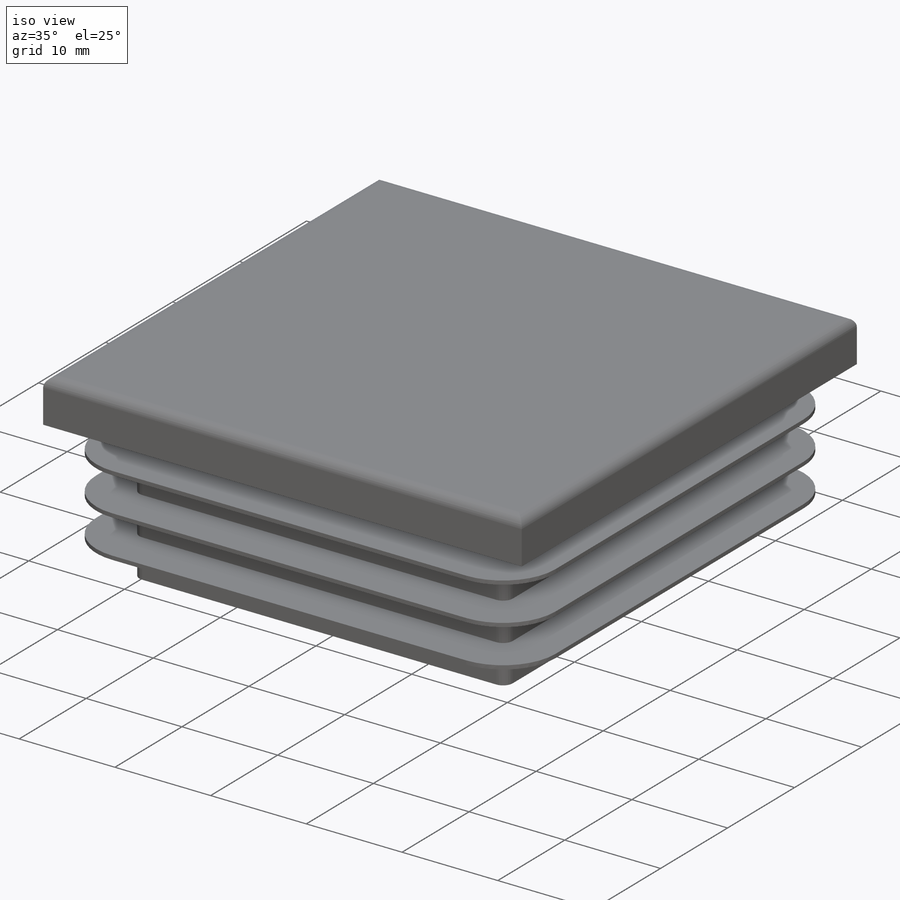
[diagram: iso view]
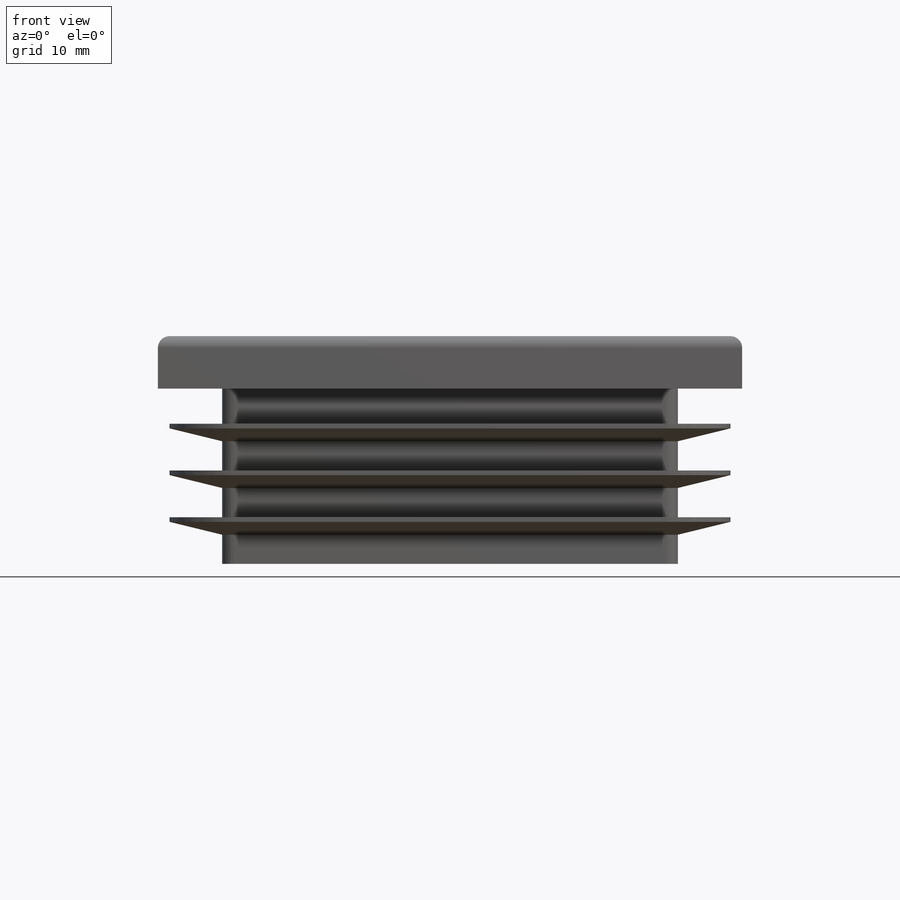
[diagram: front view]
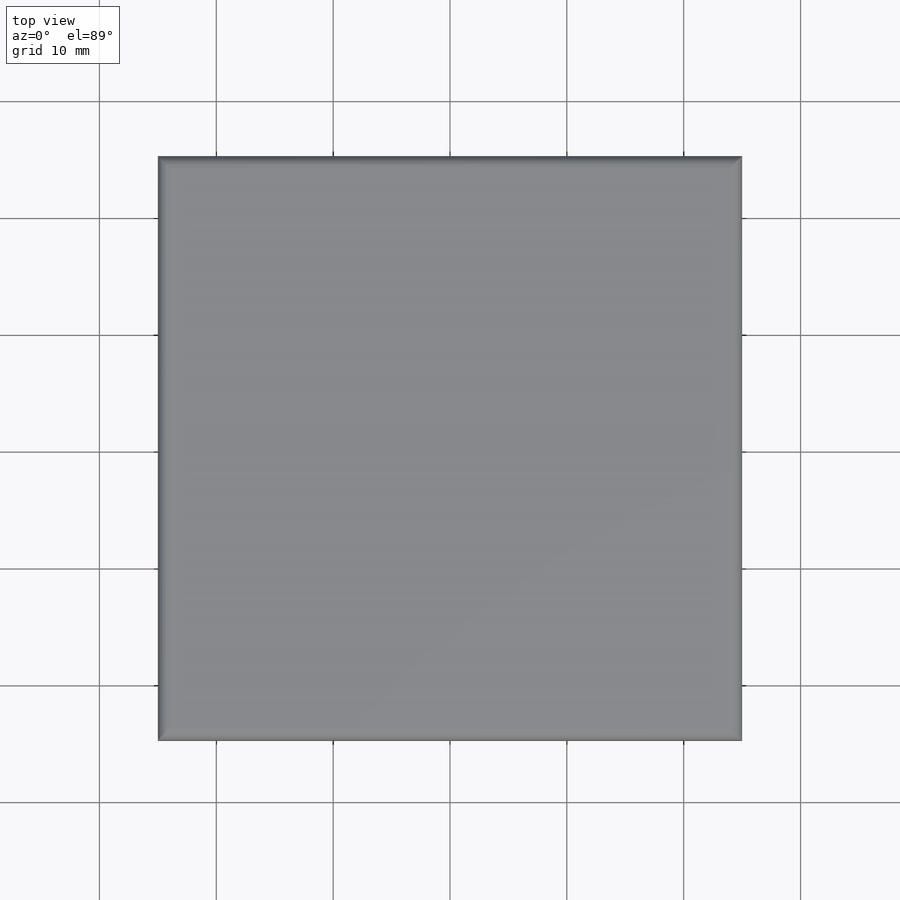
[diagram: top view]
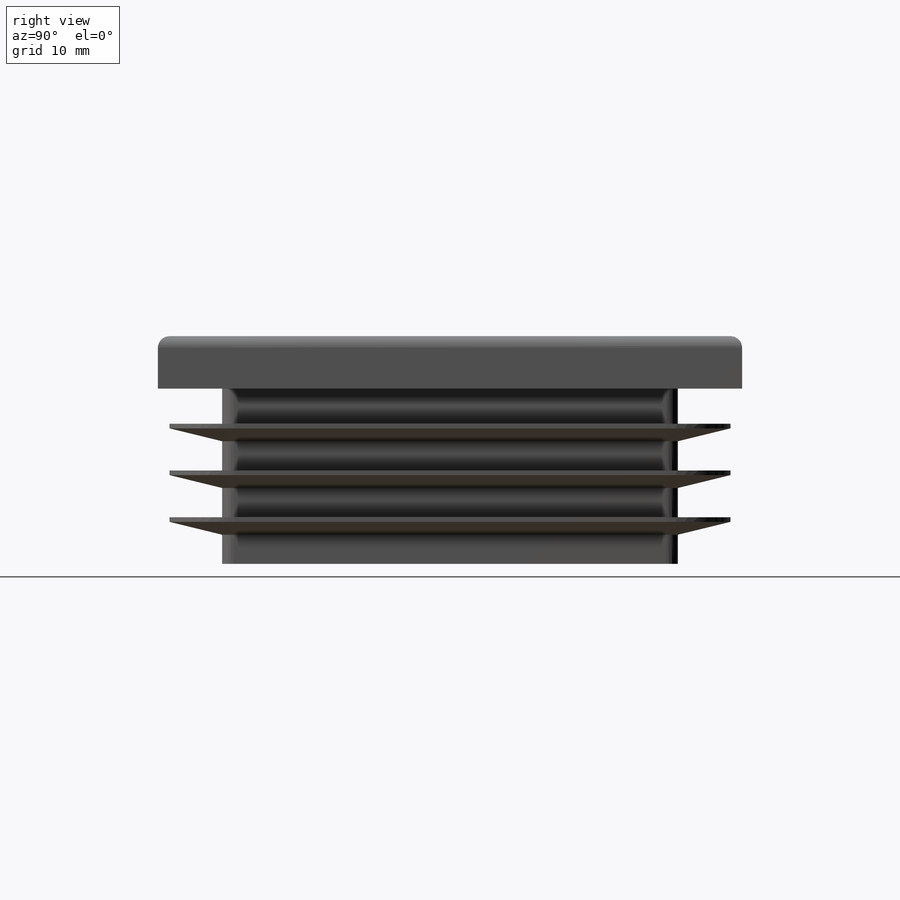
[diagram: right view]
SOLIDWORKS PART (.sldprt)
format: sldprt  version: not decoded by parser v0  size: 332,288 bytes
history: native  units: mm
features: sketch x5, material x4, extrude x2, plane x1, cut_extrude x1, fillet x1, sweep x1 + 1 further entry (+10 scaffold rows collapsed)
feature tree (26):
  scaffold x10  (default folders/planes/origin — collapsed)
  material  "Полиэтилен ВД ГОСТ 16337-77"
  material  "PTricksFreeParameters"
  material  "PTricksEqu"
  material  "PTricksFreeParameters"
  plane  "Спереди"
  "Начало координат"
  sketch  "Эскиз1"  dims[D1=50.0mm D2=50.0mm]
  extrude  "Вытянуть1"  Depth=4.5mm
  sketch  "Эскиз2"  dims[D1=39.0mm D2=39.0mm]
  extrude  "Вытянуть2"  Depth=15mm
  sketch  "Эскиз3"  dims[D1=36.5mm D2=36.5mm]
  cut_extrude  "Вытянуть3"  Depth=3mm
  fillet  "Скругление1"  Radius=1mm
  sketch  "Эскиз4"  dims[D1=0.4mm D2=3.0mm D3=1.5mm D4=1.0mm D5=4.0mm]
  sketch  "Эскиз5"  dims[D2=0.0001mm D1=0.0mm]
  sweep  "По траектории1"
decode coverage: 9 of 10 modeling features carry decoded parameters; 1 rows unclassified (native names shown)
note: suppression state not decoded; provenance and decode notes live in map.json
